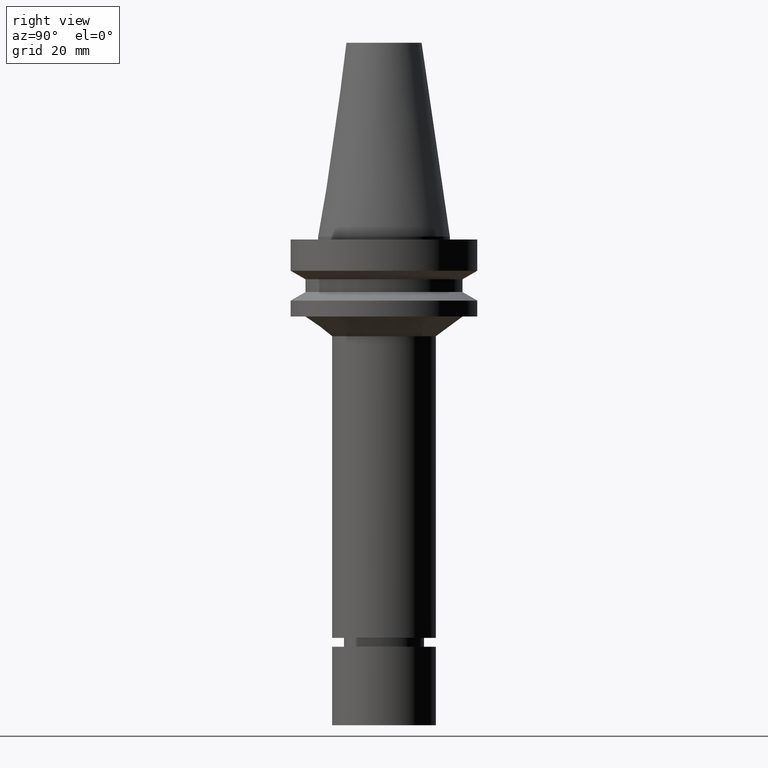
[diagram: clean part render]
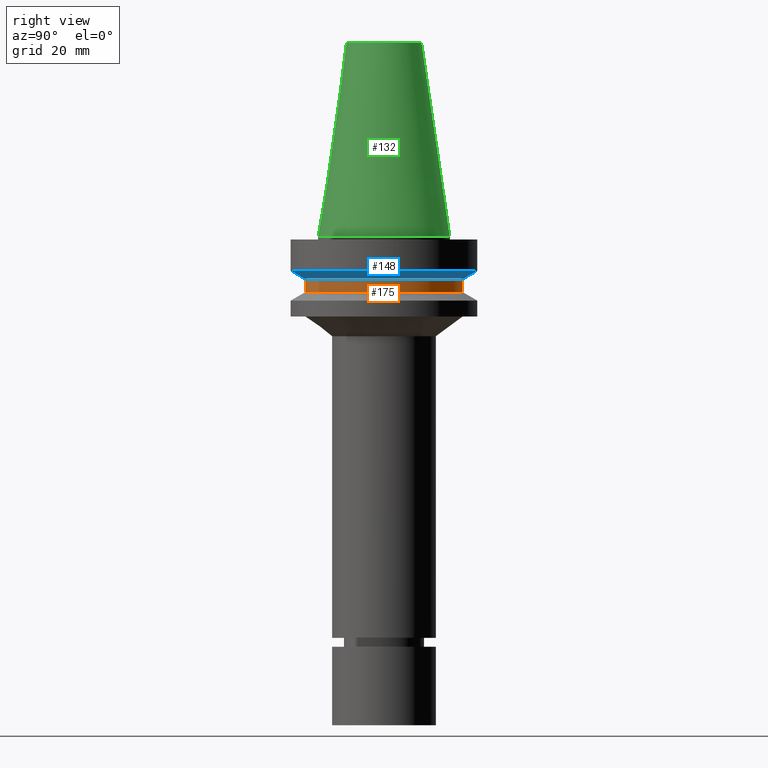
[diagram: same view with three faces highlighted in distinct colors, each labeled with its STEP entity id]
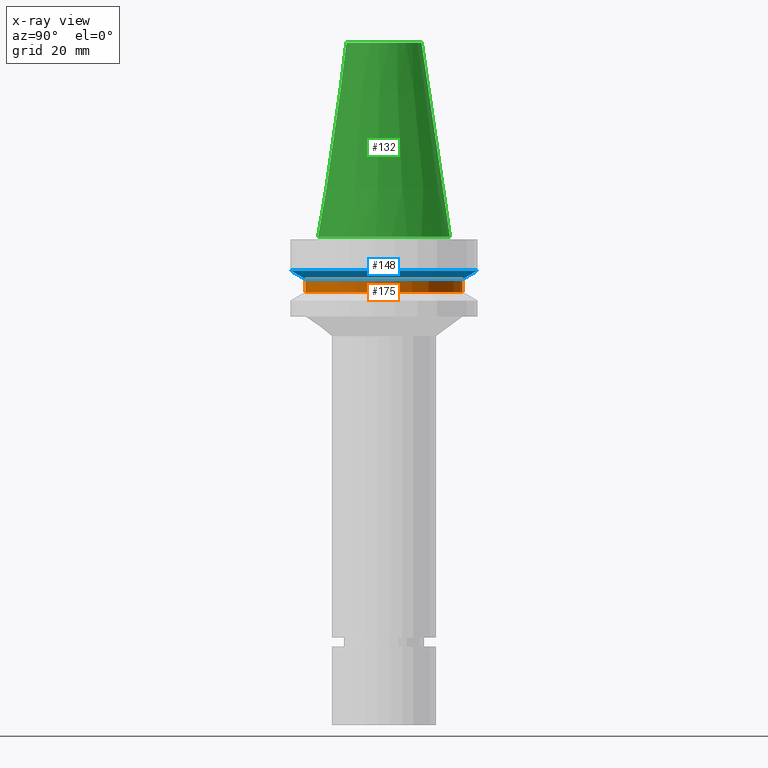
[diagram: x-ray of the same camera — body ghosted, the three highlighted faces saturated]
A machine part, right view with three faces highlighted in distinct colors.
The next image is the same camera in x-ray (body ghosted, the three faces saturated) — at least one of them is partly hidden behind the body in this view.
Their STEP definitions:

[orange] entity #175 — the highlighted cylindrical surface (bore or boss wall) has radius 26.5 mm, axis along (0, -0, -1).
#120=EDGE_CURVE('Unnamed[1]',#271,#271,#272,.T.);
#141=EDGE_CURVE('Unnamed[1]',#302,#302,#303,.T.);
#175=ADVANCED_FACE('Unnamed[1]',(#353,#354),#355,.T.);
#271=VERTEX_POINT('',#464);
#272=CIRCLE('',#465,26.4999999999994);
#302=VERTEX_POINT('',#503);
#303=CIRCLE('',#504,26.5);
#353=FACE_BOUND('',#566,.T.);
#354=FACE_BOUND('',#567,.T.);
#355=CYLINDRICAL_SURFACE('',#568,26.4999999999997);
#464=CARTESIAN_POINT('',(8.8494551369045E-016,26.4999999999995,-14.4522569986152));
#465=AXIS2_PLACEMENT_3D('',#661,#662,#663);
#503=CARTESIAN_POINT('',(1.1479681728942E-015,26.5,-18.7477430013855));
#504=AXIS2_PLACEMENT_3D('',#692,#693,#694);
#566=EDGE_LOOP('',(#747));
#567=EDGE_LOOP('',(#748));
#568=AXIS2_PLACEMENT_3D('',#749,#750,#751);
#661=CARTESIAN_POINT('',(8.84945513690451E-016,7.18103700389528E-014,-14.4522569986152));
#662=DIRECTION('',(6.12323399573677E-017,-6.62687154769284E-017,-1.0));
#663=DIRECTION('',(-7.69364216147669E-034,1.0,-6.62687154769284E-017));
#692=CARTESIAN_POINT('',(1.1479681728942E-015,7.15257136992001E-014,-18.7477430013855));
#693=DIRECTION('',(6.12323399573677E-017,-6.62687154769284E-017,-1.0));
#694=DIRECTION('',(-7.69364216147669E-034,1.0,-6.62687154769284E-017));
#747=ORIENTED_EDGE('',*,*,#141,.F.);
#748=ORIENTED_EDGE('',*,*,#120,.T.);
#749=CARTESIAN_POINT('',(1.01645684329232E-015,7.16680418690765E-014,-16.6000000000003));
#750=DIRECTION('',(6.12323399573677E-017,-6.62687154769284E-017,-1.0));
#751=DIRECTION('',(-7.69364216147669E-034,1.0,-6.62687154769284E-017));

[blue] entity #148 — the highlighted conical surface has half-angle 60 deg.
#120=EDGE_CURVE('Unnamed[1]',#271,#271,#272,.T.);
#148=ADVANCED_FACE('Unnamed[1]',(#312,#313),#314,.T.);
#166=EDGE_CURVE('Unnamed[1]',#341,#341,#342,.T.);
#271=VERTEX_POINT('',#464);
#272=CIRCLE('',#465,26.4999999999994);
#312=FACE_BOUND('',#516,.T.);
#313=FACE_BOUND('',#517,.T.);
#314=CONICAL_SURFACE('',#518,28.9999999999999,1.04719755119657);
#341=VERTEX_POINT('',#552);
#342=CIRCLE('',#553,31.5000000000003);
#464=CARTESIAN_POINT('',(8.8494551369045E-016,26.4999999999995,-14.4522569986152));
#465=AXIS2_PLACEMENT_3D('',#661,#662,#663);
#516=EDGE_LOOP('',(#702));
#517=EDGE_LOOP('',(#703));
#518=AXIS2_PLACEMENT_3D('',#704,#705,#706);
#552=CARTESIAN_POINT('',(7.08182973902924E-016,31.5000000000004,-11.5655056526664));
#553=AXIS2_PLACEMENT_3D('',#736,#737,#738);
#661=CARTESIAN_POINT('',(8.84945513690451E-016,7.18103700389528E-014,-14.4522569986152));
#662=DIRECTION('',(6.12323399573677E-017,-6.62687154769284E-017,-1.0));
#663=DIRECTION('',(-7.69364216147669E-034,1.0,-6.62687154769284E-017));
#702=ORIENTED_EDGE('',*,*,#120,.F.);
#703=ORIENTED_EDGE('',*,*,#166,.T.);
#704=CARTESIAN_POINT('',(7.96564243796687E-016,7.19060206907515E-014,-13.0088813256408));
#705=DIRECTION('',(-6.12323399573677E-017,6.62687154769284E-017,1.0));
#706=DIRECTION('',(-7.69364216147669E-034,1.0,-6.62687154769284E-017));
#736=CARTESIAN_POINT('',(7.08182973902924E-016,7.20016713425501E-014,-11.5655056526664));
#737=DIRECTION('',(6.12323399573677E-017,-6.62687154769285E-017,-1.0));
#738=DIRECTION('',(-7.69364216147668E-034,1.0,-6.62687154769284E-017));

[green] entity #132 — the highlighted conical surface has half-angle 8.297 deg.
#98=EDGE_CURVE('Unnamed[1]',#237,#237,#238,.T.);
#124=EDGE_CURVE('Unnamed[1]',#277,#277,#278,.T.);
#132=ADVANCED_FACE('Unnamed[1]',(#287,#288),#289,.T.);
#237=VERTEX_POINT('',#421);
#238=CIRCLE('',#422,12.6875000000001);
#277=VERTEX_POINT('',#472);
#278=CIRCLE('',#473,22.225);
#287=FACE_BOUND('',#484,.T.);
#288=FACE_BOUND('',#485,.T.);
#289=CONICAL_SURFACE('',#486,17.45625,0.144812498238936);
#421=CARTESIAN_POINT('',(-4.00459503321185E-015,12.6875000000002,65.4000000000001));
#422=AXIS2_PLACEMENT_3D('',#623,#624,#625);
#472=CARTESIAN_POINT('',(1.71319921032766E-029,22.2250000000001,-2.8153873565375E-013));
#473=AXIS2_PLACEMENT_3D('',#667,#668,#669);
#484=EDGE_LOOP('',(#675));
#485=EDGE_LOOP('',(#676));
#486=AXIS2_PLACEMENT_3D('',#677,#678,#679);
#623=CARTESIAN_POINT('',(-4.00459503321185E-015,7.71020765381846E-014,65.4000000000001));
#624=DIRECTION('',(6.12323399573677E-017,-6.62687154769284E-017,-1.0));
#625=DIRECTION('',(-7.69364216147669E-034,1.0,-6.62687154769284E-017));
#667=CARTESIAN_POINT('',(1.74032777401202E-029,7.27681025459935E-014,-2.8421709430404E-013));
#668=DIRECTION('',(6.12323399573677E-017,-6.62687154769284E-017,-1.0));
#669=DIRECTION('',(-7.69364216147669E-034,1.0,-6.62687154769284E-017));
#675=ORIENTED_EDGE('',*,*,#124,.F.);
#676=ORIENTED_EDGE('',*,*,#98,.T.);
#677=CARTESIAN_POINT('',(-2.00229751660592E-015,7.4935089542089E-014,32.6999999999999));
#678=DIRECTION('',(6.12323399573677E-017,-6.62687154769284E-017,-1.0));
#679=DIRECTION('',(-7.69364216147669E-034,1.0,-6.62687154769284E-017));